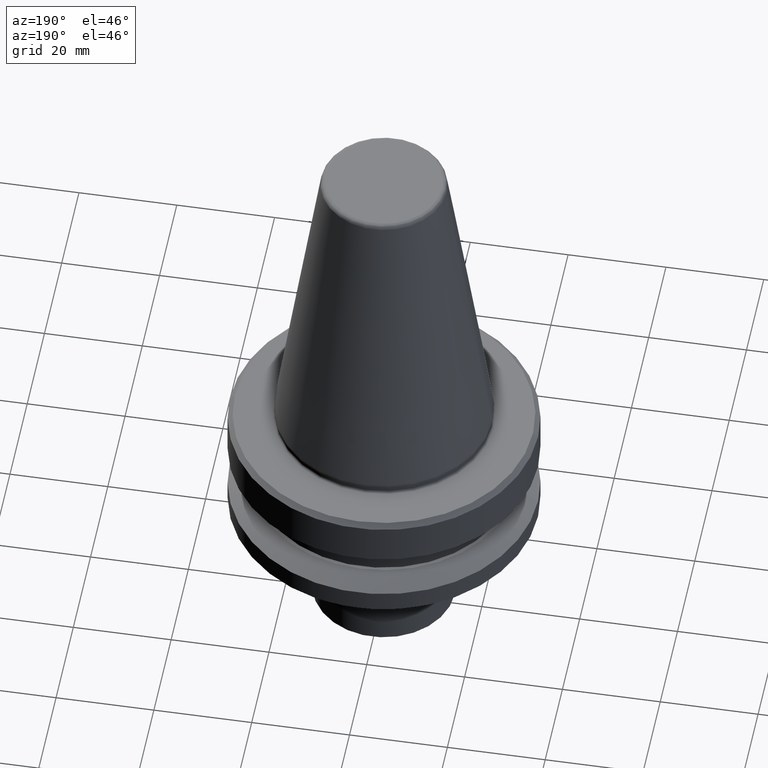
[diagram: clean part render]
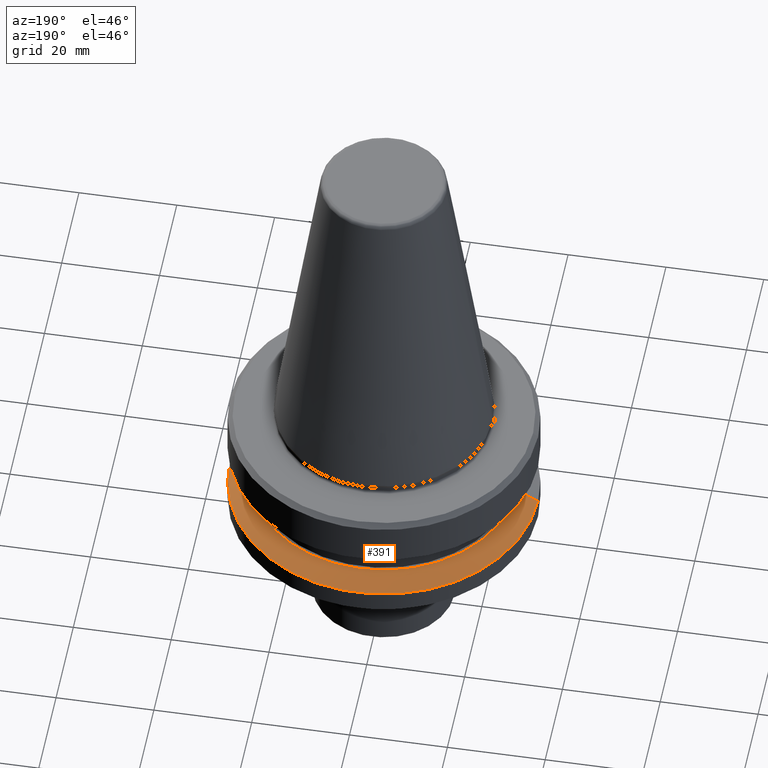
[diagram: same view with one face highlighted and labeled with its STEP entity id]
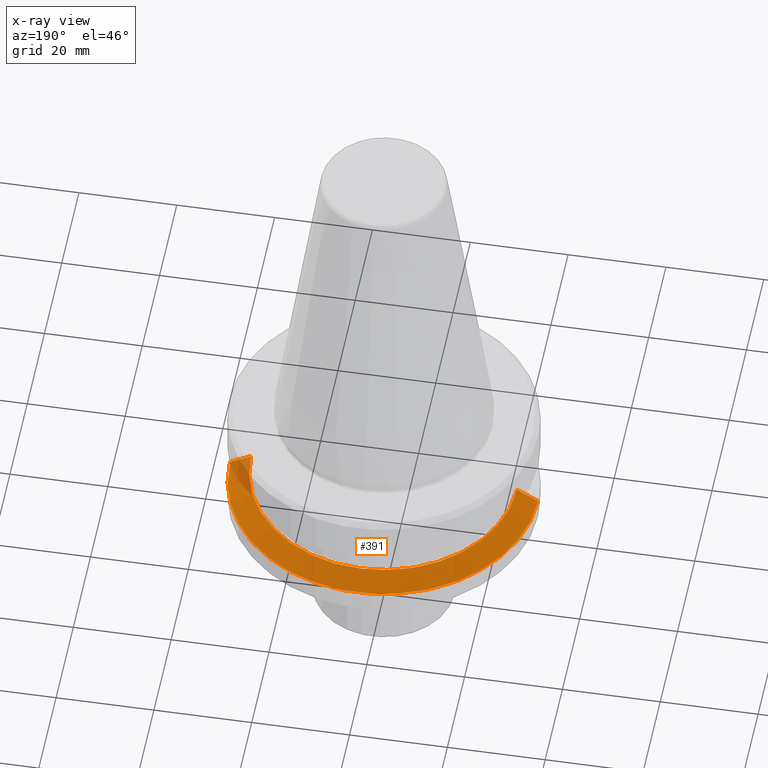
[diagram: x-ray of the same camera — body ghosted, the highlighted face saturated]
A machine part, auxiliary view. The second image highlights one B-rep face of the part: STEP entity #391.
The next image is the same camera in x-ray: the body ghosted, the highlighted face saturated — about 5% of this face is hidden behind the body in this view.
In plain terms, the highlighted conical surface has half-angle 60 deg.
Its self-contained STEP definition (entity closure, byte-faithful):
#42 = EDGE_LOOP ( 'NONE', ( #81, #800, #845, #375 ) ) ;
#81 = ORIENTED_EDGE ( 'NONE', *, *, #933, .F. ) ;
#99 = DIRECTION ( 'NONE',  ( 1.000000000000000000, 0.0000000000000000000, 0.0000000000000000000 ) ) ;
#125 = EDGE_CURVE ( 'NONE', #889, #320, #948, .T. ) ;
#211 = DIRECTION ( 'NONE',  ( 0.0000000000000000000, 0.0000000000000000000, -1.000000000000000000 ) ) ;
#220 = DIRECTION ( 'NONE',  ( -0.0000000000000000000, -0.0000000000000000000, 1.000000000000000000 ) ) ;
#227 = VECTOR ( 'NONE', #511, 1000.000000000000000 ) ;
#291 = DIRECTION ( 'NONE',  ( -1.000000000000000000, 0.0000000000000000000, 0.0000000000000000000 ) ) ;
#312 = FACE_OUTER_BOUND ( 'NONE', #42, .T. ) ;
#320 = VERTEX_POINT ( 'NONE', #496 ) ;
#375 = ORIENTED_EDGE ( 'NONE', *, *, #433, .F. ) ;
#391 = ADVANCED_FACE ( 'NONE', ( #312 ), #482, .T. ) ;
#433 = EDGE_CURVE ( 'NONE', #745, #964, #439, .T. ) ;
#439 = LINE ( 'NONE', #834, #227 ) ;
#441 = AXIS2_PLACEMENT_3D ( 'NONE', #776, #220, #697 ) ;
#482 = CONICAL_SURFACE ( 'NONE', #894, 31.50000000000008500, 1.047197551196587000 ) ;
#488 = DIRECTION ( 'NONE',  ( 0.8660254037844332700, 1.060575238724900300E-016, -0.5000000000000093300 ) ) ;
#496 = CARTESIAN_POINT ( 'NONE',  ( 31.50000000000008500, 0.0000000000000000000, -87.00014200631733300 ) ) ;
#502 = AXIS2_PLACEMENT_3D ( 'NONE', #893, #579, #99 ) ;
#505 = EDGE_CURVE ( 'NONE', #320, #964, #866, .T. ) ;
#511 = DIRECTION ( 'NONE',  ( -0.8660254037844332700, 0.0000000000000000000, -0.5000000000000093300 ) ) ;
#579 = DIRECTION ( 'NONE',  ( -0.0000000000000000000, -0.0000000000000000000, 1.000000000000000000 ) ) ;
#607 = CARTESIAN_POINT ( 'NONE',  ( 0.0000000000000000000, 0.0000000000000000000, -87.00014200631733300 ) ) ;
#621 = CARTESIAN_POINT ( 'NONE',  ( -27.16962701892256100, 0.0000000000000000000, -84.50000000000068200 ) ) ;
#663 = CARTESIAN_POINT ( 'NONE',  ( -31.50000000000008500, 3.857637417314172900E-015, -87.00014200631733300 ) ) ;
#664 = CIRCLE ( 'NONE', #502, 27.16962701892256100 ) ;
#697 = DIRECTION ( 'NONE',  ( 1.000000000000000000, 0.0000000000000000000, 0.0000000000000000000 ) ) ;
#722 = VECTOR ( 'NONE', #488, 1000.000000000000000 ) ;
#745 = VERTEX_POINT ( 'NONE', #621 ) ;
#776 = CARTESIAN_POINT ( 'NONE',  ( 0.0000000000000000000, 0.0000000000000000000, -87.00014200631733300 ) ) ;
#800 = ORIENTED_EDGE ( 'NONE', *, *, #125, .T. ) ;
#834 = CARTESIAN_POINT ( 'NONE',  ( -31.50000000000008500, 0.0000000000000000000, -87.00014200631733300 ) ) ;
#845 = ORIENTED_EDGE ( 'NONE', *, *, #505, .T. ) ;
#860 = CARTESIAN_POINT ( 'NONE',  ( 31.50000000000008500, 3.857637417314172900E-015, -87.00014200631733300 ) ) ;
#866 = CIRCLE ( 'NONE', #441, 31.50000000000008500 ) ;
#870 = CARTESIAN_POINT ( 'NONE',  ( 27.16962701892256100, 3.592478546794633900E-015, -84.50000000000068200 ) ) ;
#889 = VERTEX_POINT ( 'NONE', #870 ) ;
#893 = CARTESIAN_POINT ( 'NONE',  ( 0.0000000000000000000, 0.0000000000000000000, -84.50000000000068200 ) ) ;
#894 = AXIS2_PLACEMENT_3D ( 'NONE', #607, #211, #291 ) ;
#933 = EDGE_CURVE ( 'NONE', #889, #745, #664, .T. ) ;
#948 = LINE ( 'NONE', #860, #722 ) ;
#964 = VERTEX_POINT ( 'NONE', #663 ) ;